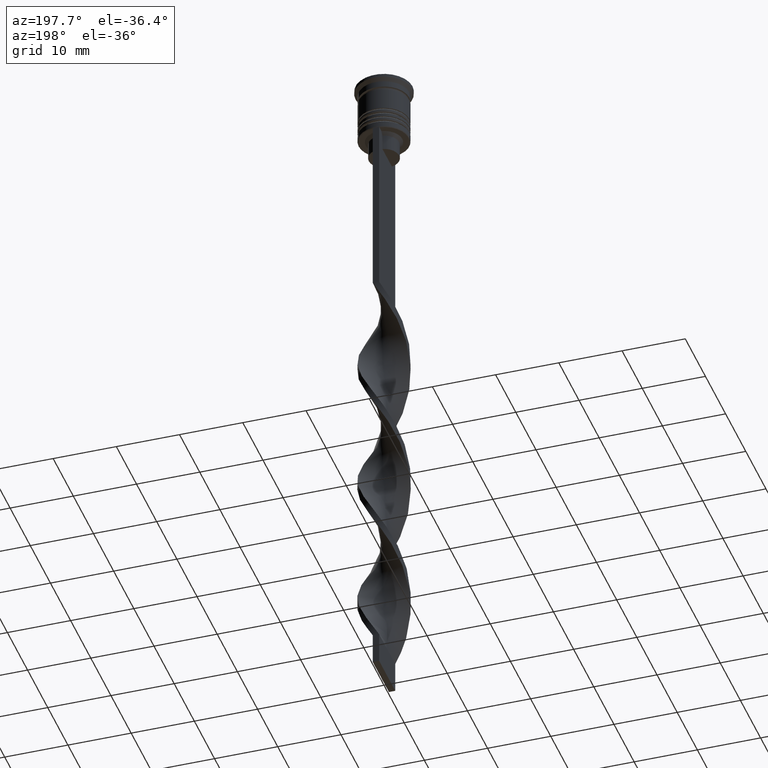
[diagram: clean part render]
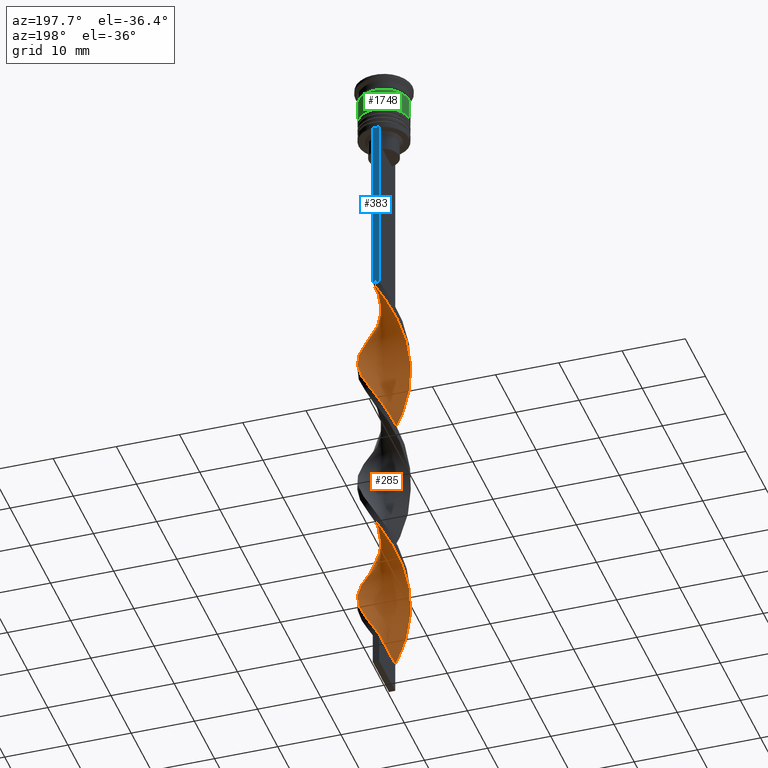
[diagram: same view with three faces highlighted in distinct colors, each labeled with its STEP entity id]
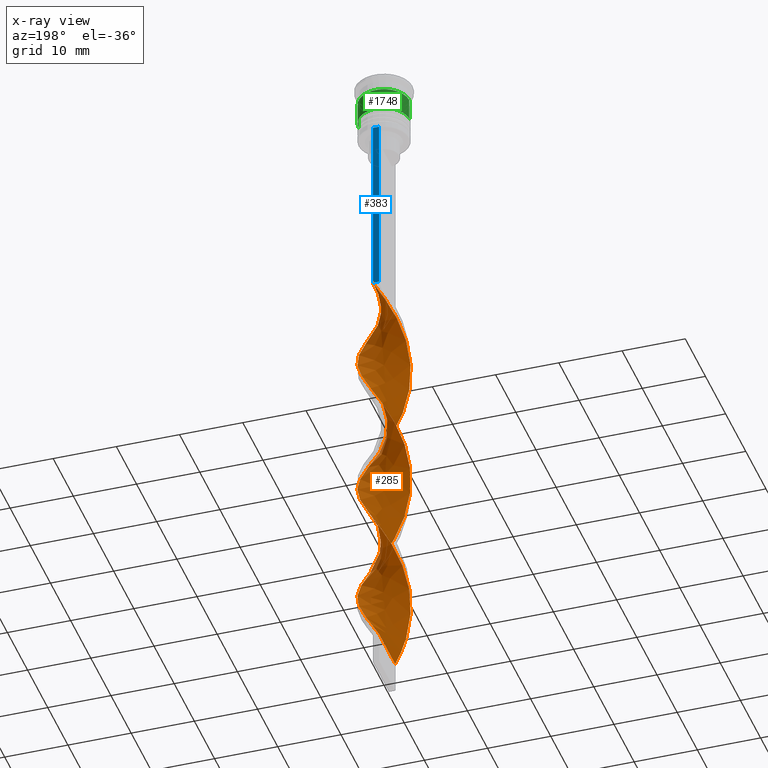
[diagram: x-ray of the same camera — body ghosted, the three highlighted faces saturated]
A machine part, auxiliary view with three faces highlighted in distinct colors.
The next image is the same camera in x-ray (body ghosted, the three faces saturated) — at least one of them is partly hidden behind the body in this view.
Their STEP definitions:

[orange] entity #285 — the highlighted face is a freeform B-spline surface patch.
#13 = CARTESIAN_POINT ( 'NONE',  ( -0.4999999999999997780, 1.333333333333333481, -104.5000000000000142 ) ) ;
#79 = CARTESIAN_POINT ( 'NONE',  ( 3.801905862948830706, -1.426565947277498525, -90.11538461538462741 ) ) ;
#80 = CARTESIAN_POINT ( 'NONE',  ( -1.874433786711570571, 3.602232165184604096, -42.73076923076923350 ) ) ;
#97 = CARTESIAN_POINT ( 'NONE',  ( 4.029378707462731413, 0.5036723384328412045, -49.50000000000000000 ) ) ;
#100 = CARTESIAN_POINT ( 'NONE',  ( 4.032828965577023972, -0.4752569063773721680, -91.80769230769230660 ) ) ;
#115 = CARTESIAN_POINT ( 'NONE',  ( 0.5000000000000000000, -4.000000000000000000, -38.50000000000000000 ) ) ;
#116 = CARTESIAN_POINT ( 'NONE',  ( -2.301620701001679148, -3.309462516590954806, -101.1153846153846132 ) ) ;
#121 = CARTESIAN_POINT ( 'NONE',  ( -4.029378707462731413, -0.5036723384328407604, -71.50000000000001421 ) ) ;
#139 = CARTESIAN_POINT ( 'NONE',  ( -2.301620701001678704, 3.309462516590955250, -63.88461538461538680 ) ) ;
#140 = CARTESIAN_POINT ( 'NONE',  ( 4.031103836519878136, 0.01420771602773408804, -92.65384615384616041 ) ) ;
#157 = CARTESIAN_POINT ( 'NONE',  ( 2.301620701001678704, -3.309462516590955250, -85.88461538461538680 ) ) ;
#160 = CARTESIAN_POINT ( 'NONE',  ( -0.9856879328890441050, -3.939289008388869640, -59.65384615384615330 ) ) ;
#180 = CARTESIAN_POINT ( 'NONE',  ( -3.575967836940204148, -1.860767053977794516, -53.73076923076923350 ) ) ;
#181 = CARTESIAN_POINT ( 'NONE',  ( -2.301620701001678704, 3.309462516590955250, -63.88461538461538680 ) ) ;
#184 = CARTESIAN_POINT ( 'NONE',  ( -3.350029810931577590, -2.294968160678091618, -54.57692307692308731 ) ) ;
#191 = CARTESIAN_POINT ( 'NONE',  ( 0.4717917484372037285, -4.003425101847986944, -62.19230769230769340 ) ) ;
#207 = CARTESIAN_POINT ( 'NONE',  ( 4.031103836519877248, -0.01420771602773772055, -72.34615384615383959 ) ) ;
#208 = CARTESIAN_POINT ( 'NONE',  ( -3.350029810931575813, 2.294968160678093394, -66.42307692307694822 ) ) ;
#211 = CARTESIAN_POINT ( 'NONE',  ( 3.575967836940203703, -1.860767053977795404, -45.26923076923076650 ) ) ;
#210 = CARTESIAN_POINT ( 'NONE',  ( 2.703462203165886368, -3.029995166449922284, -86.73076923076922640 ) ) ;
#214 = CARTESIAN_POINT ( 'NONE',  ( -0.01431206711095876771, -4.060710991611130360, -61.34615384615383959 ) ) ;
#224 = CARTESIAN_POINT ( 'NONE',  ( 3.333769449374404115, -2.318525361317905098, -68.11538461538461320 ) ) ;
#226 = CARTESIAN_POINT ( 'NONE',  ( 3.562762527220391551, 1.885927669512849070, -52.03846153846154010 ) ) ;
#251 = CARTESIAN_POINT ( 'NONE',  ( -3.910567156264554534, 0.9785011580703200096, -92.65384615384616041 ) ) ;
#257 = CARTESIAN_POINT ( 'NONE',  ( 3.562762527220391551, 1.885927669512849070, -96.03846153846154721 ) ) ;
#268 = CARTESIAN_POINT ( 'NONE',  ( 0.5000000000000000000, 4.000000000000000000, -38.50000000000000000 ) ) ;
#277 = CARTESIAN_POINT ( 'NONE',  ( 3.575967836940204148, 1.860767053977794072, -75.73076923076924061 ) ) ;
#285 = ADVANCED_FACE ( 'NONE', ( #3064 ), #1104, .T. ) ;
#324 = CARTESIAN_POINT ( 'NONE',  ( 2.682036731043690558, 3.048976478424999303, -98.57692307692310862 ) ) ;
#364 = CARTESIAN_POINT ( 'NONE',  ( 0.5000000000000000000, -4.000000000000000000, -82.50000000000000000 ) ) ;
#385 = CARTESIAN_POINT ( 'NONE',  ( 0.4717917484372064485, 4.003425101847986056, -58.80769230769231370 ) ) ;
#401 = CARTESIAN_POINT ( 'NONE',  ( -3.801905862948829373, 1.426565947277500745, -68.11538461538461320 ) ) ;
#421 = CARTESIAN_POINT ( 'NONE',  ( -2.682036731043692779, -3.048976478424997527, -76.57692307692306599 ) ) ;
#427 = CARTESIAN_POINT ( 'NONE',  ( -4.031103836519878136, 0.01420771602773549663, -50.34615384615384670 ) ) ;
#438 = CARTESIAN_POINT ( 'NONE',  ( 1.442733565863256961, -3.764109437560429150, -84.19230769230769340 ) ) ;
#441 = CARTESIAN_POINT ( 'NONE',  ( -0.9578955639853675708, 3.946139212084843972, -41.03846153846154010 ) ) ;
#444 = CARTESIAN_POINT ( 'NONE',  ( -0.4999999999999994449, 4.000000000000000000, -60.50000000000000000 ) ) ;
#451 = LINE ( 'NONE', #1015, #3233 ) ;
#462 = CARTESIAN_POINT ( 'NONE',  ( -1.899779198837470373, 3.588929866731989549, -63.03846153846153300 ) ) ;
#482 = CARTESIAN_POINT ( 'NONE',  ( 1.899779198837473482, 3.588929866731988660, -79.96153846153846700 ) ) ;
#487 = CARTESIAN_POINT ( 'NONE',  ( 1.442733565863260736, 3.764109437560427818, -80.80769230769230660 ) ) ;
#501 = CARTESIAN_POINT ( 'NONE',  ( -0.9578955639853675708, 3.946139212084843972, -85.03846153846153300 ) ) ;
#502 = CARTESIAN_POINT ( 'NONE',  ( -2.703462203165885924, 3.029995166449922728, -64.73076923076921219 ) ) ;
#507 = CARTESIAN_POINT ( 'NONE',  ( 1.416164675348468904, -3.774185688634723590, -63.88461538461538680 ) ) ;
#520 = CARTESIAN_POINT ( 'NONE',  ( 0.4717917484372037285, -4.003425101847986944, -62.19230769230769340 ) ) ;
#521 = CARTESIAN_POINT ( 'NONE',  ( -3.910567156264555422, -0.9785011580703162348, -72.34615384615383959 ) ) ;
#524 = CARTESIAN_POINT ( 'NONE',  ( 1.416164675348469792, 3.774185688634723146, -57.11538461538461320 ) ) ;
#541 = CARTESIAN_POINT ( 'NONE',  ( -1.416164675348469126, 3.774185688634723590, -85.88461538461538680 ) ) ;
#551 = CARTESIAN_POINT ( 'NONE',  ( -2.278235258877630010, 3.325604321804802588, -87.57692307692308020 ) ) ;
#560 = CARTESIAN_POINT ( 'NONE',  ( 2.278235258877629565, -3.325604321804802588, -65.57692307692308020 ) ) ;
#566 = CARTESIAN_POINT ( 'NONE',  ( -3.333769449374405003, 2.318525361317902878, -46.11538461538462741 ) ) ;
#578 = CARTESIAN_POINT ( 'NONE',  ( -0.5000000000000002220, -1.333333333333333481, -104.5000000000000142 ) ) ;
#608 =( BOUNDED_CURVE ( )  B_SPLINE_CURVE ( 2, ( #974, #2361, #744, #441, #2397, #953, #3490, #2108, #3471, #2093, #2710, #2932, #1840, #2125, #427, #1306, #1560, #3199, #180, #3508, #2678, #1008, #1330, #1575, #2695, #160, #2071, #2412, #520, #1069, #2732, #3267, #560, #2518, #2434, #224, #1972, #1365, #1115, #758, #207, #3583, #1387, #3547, #277, #1408, #1635, #3628, #1891, #482, #2766, #3076, #781, #840, #1697, #501, #541, #1348, #2458, #1048, #2802, #2168, #1934, #2748, #3329, #1617, #3000, #2473, #3306, #3564, #2183, #2226, #1675, #3042, #1130, #1090, #3342, #2207, #1918 ),
 .UNSPECIFIED., .F., .T. ) 
 B_SPLINE_CURVE_WITH_KNOTS ( ( 3, 2, 2, 2, 2, 2, 2, 2, 2, 2, 2, 2, 2, 2, 2, 2, 2, 2, 2, 2, 2, 2, 2, 2, 2, 2, 2, 2, 2, 2, 2, 2, 2, 2, 2, 2, 2, 2, 2, 3 ),
 ( 0.000000000000000000, 0.01923076923076923184, 0.03846153846153846367, 0.05769230769230768857, 0.07692307692307692735, 0.09615384615384615918, 0.1153846153846153771, 0.1346153846153846090, 0.1538461538461538547, 0.1730769230769230449, 0.1923076923076923184, 0.2115384615384615363, 0.2307692307692307543, 0.2500000000000000000, 0.2692307692307692180, 0.2884615384615384359, 0.3076923076923077094, 0.3269230769230769273, 0.3461538461538460898, 0.3653846153846153633, 0.3846153846153846367, 0.4038461538461539102, 0.4230769230769230727, 0.4423076923076922906, 0.4615384615384615086, 0.4807692307692307820, 0.5000000000000000000, 0.5192307692307692735, 0.5384615384615384359, 0.5576923076923077094, 0.5769230769230768718, 0.5961538461538461453, 0.6153846153846154188, 0.6346153846153845812, 0.6538461538461538547, 0.6730769230769230171, 0.6923076923076921796, 0.7115384615384615641, 0.7307692307692307265, 0.7500000000000000000 ),
 .UNSPECIFIED. ) 
 CURVE ( )  GEOMETRIC_REPRESENTATION_ITEM ( )  RATIONAL_B_SPLINE_CURVE ( ( 1.000000000000000000, 0.9927088740980539727, 1.000000000000000000, 0.9927088740980539727, 1.000000000000000000, 0.9927088740980539727, 1.000000000000000000, 0.9927088740980539727, 1.000000000000000000, 0.9927088740980539727, 1.000000000000000000, 0.9927088740980539727, 1.000000000000000000, 0.9927088740980539727, 1.000000000000000000, 0.9927088740980539727, 1.000000000000000000, 0.9927088740980539727, 1.000000000000000000, 0.9927088740980539727, 1.000000000000000000, 0.9927088740980539727, 1.000000000000000000, 0.9927088740980539727, 1.000000000000000000, 0.9927088740980539727, 1.000000000000000000, 0.9927088740980539727, 1.000000000000000000, 0.9927088740980539727, 1.000000000000000000, 0.9927088740980539727, 1.000000000000000000, 0.9927088740980539727, 1.000000000000000000, 0.9927088740980539727, 1.000000000000000000, 0.9927088740980539727, 1.000000000000000000, 0.9927088740980539727, 1.000000000000000000, 0.9927088740980539727, 1.000000000000000000, 0.9927088740980539727, 1.000000000000000000, 0.9927088740980539727, 1.000000000000000000, 0.9927088740980539727, 1.000000000000000000, 0.9927088740980539727, 1.000000000000000000, 0.9927088740980539727, 1.000000000000000000, 0.9927088740980539727, 1.000000000000000000, 0.9927088740980539727, 1.000000000000000000, 0.9927088740980539727, 1.000000000000000000, 0.9927088740980539727, 1.000000000000000000, 0.9927088740980539727, 1.000000000000000000, 0.9927088740980539727, 1.000000000000000000, 0.9927088740980539727, 1.000000000000000000, 0.9927088740980539727, 1.000000000000000000, 0.9927088740980539727, 1.000000000000000000, 0.9927088740980539727, 1.000000000000000000, 0.9927088740980539727, 1.000000000000000000, 0.9927088740980539727, 1.000000000000000000, 0.9927088740980539727, 1.000000000000000000 ) ) 
 REPRESENTATION_ITEM ( '' )  );
#665 = CARTESIAN_POINT ( 'NONE',  ( 2.703462203165886368, -3.029995166449922284, -42.73076923076923350 ) ) ;
#682 = CARTESIAN_POINT ( 'NONE',  ( 3.350029810931576701, -2.294968160678092506, -44.42307692307692690 ) ) ;
#685 = CARTESIAN_POINT ( 'NONE',  ( 2.301620701001678704, -3.309462516590955250, -41.88461538461537970 ) ) ;
#695 = CARTESIAN_POINT ( 'NONE',  ( -3.791755605066378987, -1.453329977707795484, -73.19230769230769340 ) ) ;
#715 = CARTESIAN_POINT ( 'NONE',  ( -0.4717917484372087800, -4.003425101847986056, -80.80769230769230660 ) ) ;
#718 = CARTESIAN_POINT ( 'NONE',  ( 4.029378707462731413, 0.5036723384328412045, -93.49999999999998579 ) ) ;
#722 = CARTESIAN_POINT ( 'NONE',  ( 1.442733565863256961, -3.764109437560429150, -40.19230769230769340 ) ) ;
#725 = CARTESIAN_POINT ( 'NONE',  ( 3.910567156264554534, 0.9785011580703186773, -94.34615384615385381 ) ) ;
#727 = CARTESIAN_POINT ( 'NONE',  ( 3.575967836940203703, -1.860767053977795404, -89.26923076923077360 ) ) ;
#739 = CARTESIAN_POINT ( 'NONE',  ( -3.007903090209048891, -2.683750919871450868, -75.73076923076924061 ) ) ;
#744 = CARTESIAN_POINT ( 'NONE',  ( -0.4717917484372050052, 4.003425101847986944, -40.19230769230769340 ) ) ;
#749 = CARTESIAN_POINT ( 'NONE',  ( 1.899779198837473482, 3.588929866731988216, -79.96153846153846700 ) ) ;
#752 = CARTESIAN_POINT ( 'NONE',  ( -3.575967836940204148, -1.860767053977794516, -97.73076923076922640 ) ) ;
#755 = CARTESIAN_POINT ( 'NONE',  ( 1.416164675348469792, 3.774185688634723146, -101.1153846153846132 ) ) ;
#758 = CARTESIAN_POINT ( 'NONE',  ( 4.029378707462731413, -0.5036723384328422037, -71.50000000000001421 ) ) ;
#759 = CARTESIAN_POINT ( 'NONE',  ( 1.899779198837471705, -3.588929866731989105, -41.03846153846154010 ) ) ;
#760 = CARTESIAN_POINT ( 'NONE',  ( -3.801905862948829373, 1.426565947277500745, -68.11538461538462741 ) ) ;
#768 = CARTESIAN_POINT ( 'NONE',  ( 0.5000000000000000000, 4.000000000000000000, -38.50000000000000000 ) ) ;
#781 = CARTESIAN_POINT ( 'NONE',  ( 0.5000000000000000000, 4.000000000000000000, -82.50000000000000000 ) ) ;
#784 = CARTESIAN_POINT ( 'NONE',  ( 3.917367414262926673, -0.9509114268274357906, -46.96153846153845990 ) ) ;
#797 = CARTESIAN_POINT ( 'NONE',  ( 1.874433786711570793, 3.602232165184603652, -100.2692307692307878 ) ) ;
#805 = CARTESIAN_POINT ( 'NONE',  ( -3.562762527220391551, -1.885927669512849514, -74.03846153846153300 ) ) ;
#807 = CARTESIAN_POINT ( 'NONE',  ( 3.007903090209048003, 2.683750919871450868, -53.73076923076923350 ) ) ;
#810 = CARTESIAN_POINT ( 'NONE',  ( 3.562762527220391107, -1.885927669512850846, -68.96153846153846700 ) ) ;
#815 = CARTESIAN_POINT ( 'NONE',  ( -3.007903090209047559, 2.683750919871451757, -89.26923076923077360 ) ) ;
#819 = CARTESIAN_POINT ( 'NONE',  ( 2.278235258877631342, 3.325604321804801256, -99.42307692307691980 ) ) ;
#825 = CARTESIAN_POINT ( 'NONE',  ( -0.01431206711095605461, 4.060710991611130360, -59.65384615384615330 ) ) ;
#840 = CARTESIAN_POINT ( 'NONE',  ( 0.01431206711095789862, 4.060710991611130360, -83.34615384615386802 ) ) ;
#848 = CARTESIAN_POINT ( 'NONE',  ( -2.682036731043689670, 3.048976478425000636, -44.42307692307691980 ) ) ;
#873 = CARTESIAN_POINT ( 'NONE',  ( 3.007903090209048003, 2.683750919871450868, -97.73076923076922640 ) ) ;
#879 = CARTESIAN_POINT ( 'NONE',  ( -0.5000000000000005551, -4.000000000000000000, -104.5000000000000142 ) ) ;
#882 = CARTESIAN_POINT ( 'NONE',  ( 0.4717917484372064485, 4.003425101847986056, -102.8076923076923208 ) ) ;
#919 = CARTESIAN_POINT ( 'NONE',  ( -0.5000000000000005551, -4.000000000000000000, -104.5000000000000142 ) ) ;
#931 = EDGE_CURVE ( 'NONE', #1006, #3159, #3027, .T. ) ;
#947 = CARTESIAN_POINT ( 'NONE',  ( 3.575967836940203703, -1.860767053977795404, -45.26923076923076650 ) ) ;
#948 = CARTESIAN_POINT ( 'NONE',  ( 0.01431206711095789688, 4.060710991611130360, -39.34615384615384670 ) ) ;
#953 = CARTESIAN_POINT ( 'NONE',  ( -1.874433786711570349, 3.602232165184604096, -42.73076923076923350 ) ) ;
#971 = CARTESIAN_POINT ( 'NONE',  ( 3.562762527220391551, 1.885927669512849070, -52.03846153846154010 ) ) ;
#974 = CARTESIAN_POINT ( 'NONE',  ( 0.5000000000000000000, 4.000000000000000000, -38.50000000000000000 ) ) ;
#985 = CARTESIAN_POINT ( 'NONE',  ( 0.5000000000000000000, -4.000000000000000000, -38.50000000000000000 ) ) ;
#1004 = CARTESIAN_POINT ( 'NONE',  ( -1.416164675348472235, -3.774185688634722702, -79.11538461538461320 ) ) ;
#1006 = VERTEX_POINT ( 'NONE', #879 ) ;
#1008 = CARTESIAN_POINT ( 'NONE',  ( -2.703462203165886368, -3.029995166449921840, -56.26923076923076650 ) ) ;
#1009 = CARTESIAN_POINT ( 'NONE',  ( 0.5000000000000000000, -4.000000000000000000, -38.50000000000000000 ) ) ;
#1015 = CARTESIAN_POINT ( 'NONE',  ( 0.5000000000000000000, -4.000000000000000000, -38.50000000000000000 ) ) ;
#1021 = CARTESIAN_POINT ( 'NONE',  ( 1.442733565863256961, -3.764109437560429150, -40.19230769230769340 ) ) ;
#1028 = CARTESIAN_POINT ( 'NONE',  ( -0.4999999999999994449, 4.000000000000000000, -104.5000000000000142 ) ) ;
#1036 = CARTESIAN_POINT ( 'NONE',  ( -3.917367414262927561, -0.9509114268274344584, -96.03846153846154721 ) ) ;
#1048 = CARTESIAN_POINT ( 'NONE',  ( -2.682036731043690114, 3.048976478425000636, -88.42307692307691980 ) ) ;
#1049 = CARTESIAN_POINT ( 'NONE',  ( -3.007903090209048891, -2.683750919871450868, -75.73076923076924061 ) ) ;
#1058 = CARTESIAN_POINT ( 'NONE',  ( -1.416164675348469126, 3.774185688634723590, -85.88461538461538680 ) ) ;
#1069 = CARTESIAN_POINT ( 'NONE',  ( 0.9578955639853662385, -3.946139212084843972, -63.03846153846154010 ) ) ;
#1073 = CARTESIAN_POINT ( 'NONE',  ( 2.278235258877629565, -3.325604321804802588, -65.57692307692308020 ) ) ;
#1090 = CARTESIAN_POINT ( 'NONE',  ( -1.899779198837473038, -3.588929866731988660, -101.9615384615384670 ) ) ;
#1091 = CARTESIAN_POINT ( 'NONE',  ( -3.575967836940203703, 1.860767053977795404, -67.26923076923077360 ) ) ;
#1094 = CARTESIAN_POINT ( 'NONE',  ( 3.333769449374405447, 2.318525361317902433, -52.88461538461537970 ) ) ;
#1104 =( BOUNDED_SURFACE ( )  B_SPLINE_SURFACE ( 1, 2, ( 
 ( #268, #948, #2247, #2276, #1734, #80, #3348, #848, #3078, #566, #1595, #1564, #3510, #1860, #3549, #1309, #2414, #2150, #2712, #184, #3476, #2419, #2230, #3028, #1371, #3252, #1879, #214, #191, #3615, #507, #3534, #1073, #2483, #2213, #3313, #810, #1940, #1410, #2635, #1210, #1899, #1659, #3332, #3570, #1959, #2443, #2175, #3314, #749, #487, #2985, #3008, #2191, #1393, #2755, #1058, #2796, #551, #1357, #815, #1622, #3595, #1943, #251, #2510, #3538, #3335, #1036, #3257, #752, #1604, #2720, #2651, #116, #1281, #3256, #1289, #2679 ),
 ( #1009, #2126, #722, #759, #685, #2563, #3309, #1593, #211, #2438, #784, #3565, #1893, #3003, #2186, #2750, #226, #1094, #807, #2502, #1936, #3045, #524, #1655, #2227, #825, #444, #2184, #1349, #462, #181, #502, #3584, #208, #1091, #760, #2435, #2208, #3307, #2413, #521, #3528, #805, #3610, #1049, #3645, #2476, #3587, #2341, #3449, #1467, #3391, #2021, #2323, #1455, #1473, #3269, #210, #3288, #1546, #727, #1888, #3265, #100, #140, #718, #725, #2398, #1164, #2320, #873, #324, #1193, #2302, #3146, #3107, #2952, #1561, #1028 ) ),
 .UNSPECIFIED., .F., .F., .F. ) 
 B_SPLINE_SURFACE_WITH_KNOTS ( ( 2, 2 ),
 ( 3, 2, 2, 2, 2, 2, 2, 2, 2, 2, 2, 2, 2, 2, 2, 2, 2, 2, 2, 2, 2, 2, 2, 2, 2, 2, 2, 2, 2, 2, 2, 2, 2, 2, 2, 2, 2, 2, 2, 3 ),
 ( 0.000000000000000000, 1.000000000000000000 ),
 ( 0.000000000000000000, 0.01923076923076923184, 0.03846153846153846367, 0.05769230769230769551, 0.07692307692307692735, 0.09615384615384615918, 0.1153846153846153910, 0.1346153846153846090, 0.1538461538461538547, 0.1730769230769230727, 0.1923076923076923184, 0.2115384615384615363, 0.2307692307692307820, 0.2500000000000000000, 0.2692307692307692180, 0.2884615384615384359, 0.3076923076923077094, 0.3269230769230769273, 0.3461538461538461453, 0.3653846153846153633, 0.3846153846153846367, 0.4038461538461538547, 0.4230769230769230727, 0.4423076923076922906, 0.4615384615384615641, 0.4807692307692307820, 0.5000000000000000000, 0.5192307692307692735, 0.5384615384615384359, 0.5576923076923077094, 0.5769230769230768718, 0.5961538461538461453, 0.6153846153846154188, 0.6346153846153845812, 0.6538461538461538547, 0.6730769230769231282, 0.6923076923076922906, 0.7115384615384615641, 0.7307692307692307265, 0.7500000000000000000 ),
 .UNSPECIFIED. ) 
 GEOMETRIC_REPRESENTATION_ITEM ( )  RATIONAL_B_SPLINE_SURFACE ( (
 ( 1.000000000000000000, 0.9927088740980539727, 1.000000000000000000, 0.9927088740980539727, 1.000000000000000000, 0.9927088740980539727, 1.000000000000000000, 0.9927088740980539727, 1.000000000000000000, 0.9927088740980539727, 1.000000000000000000, 0.9927088740980539727, 1.000000000000000000, 0.9927088740980539727, 1.000000000000000000, 0.9927088740980539727, 1.000000000000000000, 0.9927088740980539727, 1.000000000000000000, 0.9927088740980539727, 1.000000000000000000, 0.9927088740980539727, 1.000000000000000000, 0.9927088740980539727, 1.000000000000000000, 0.9927088740980539727, 1.000000000000000000, 0.9927088740980539727, 1.000000000000000000, 0.9927088740980539727, 1.000000000000000000, 0.9927088740980539727, 1.000000000000000000, 0.9927088740980539727, 1.000000000000000000, 0.9927088740980539727, 1.000000000000000000, 0.9927088740980539727, 1.000000000000000000, 0.9927088740980539727, 1.000000000000000000, 0.9927088740980539727, 1.000000000000000000, 0.9927088740980539727, 1.000000000000000000, 0.9927088740980539727, 1.000000000000000000, 0.9927088740980539727, 1.000000000000000000, 0.9927088740980539727, 1.000000000000000000, 0.9927088740980539727, 1.000000000000000000, 0.9927088740980539727, 1.000000000000000000, 0.9927088740980539727, 1.000000000000000000, 0.9927088740980539727, 1.000000000000000000, 0.9927088740980539727, 1.000000000000000000, 0.9927088740980539727, 1.000000000000000000, 0.9927088740980539727, 1.000000000000000000, 0.9927088740980539727, 1.000000000000000000, 0.9927088740980539727, 1.000000000000000000, 0.9927088740980539727, 1.000000000000000000, 0.9927088740980539727, 1.000000000000000000, 0.9927088740980539727, 1.000000000000000000, 0.9927088740980539727, 1.000000000000000000, 0.9927088740980539727, 1.000000000000000000),
 ( 1.000000000000000000, 0.9927088740980539727, 1.000000000000000000, 0.9927088740980539727, 1.000000000000000000, 0.9927088740980539727, 1.000000000000000000, 0.9927088740980539727, 1.000000000000000000, 0.9927088740980539727, 1.000000000000000000, 0.9927088740980539727, 1.000000000000000000, 0.9927088740980539727, 1.000000000000000000, 0.9927088740980539727, 1.000000000000000000, 0.9927088740980539727, 1.000000000000000000, 0.9927088740980539727, 1.000000000000000000, 0.9927088740980539727, 1.000000000000000000, 0.9927088740980539727, 1.000000000000000000, 0.9927088740980539727, 1.000000000000000000, 0.9927088740980539727, 1.000000000000000000, 0.9927088740980539727, 1.000000000000000000, 0.9927088740980539727, 1.000000000000000000, 0.9927088740980539727, 1.000000000000000000, 0.9927088740980539727, 1.000000000000000000, 0.9927088740980539727, 1.000000000000000000, 0.9927088740980539727, 1.000000000000000000, 0.9927088740980539727, 1.000000000000000000, 0.9927088740980539727, 1.000000000000000000, 0.9927088740980539727, 1.000000000000000000, 0.9927088740980539727, 1.000000000000000000, 0.9927088740980539727, 1.000000000000000000, 0.9927088740980539727, 1.000000000000000000, 0.9927088740980539727, 1.000000000000000000, 0.9927088740980539727, 1.000000000000000000, 0.9927088740980539727, 1.000000000000000000, 0.9927088740980539727, 1.000000000000000000, 0.9927088740980539727, 1.000000000000000000, 0.9927088740980539727, 1.000000000000000000, 0.9927088740980539727, 1.000000000000000000, 0.9927088740980539727, 1.000000000000000000, 0.9927088740980539727, 1.000000000000000000, 0.9927088740980539727, 1.000000000000000000, 0.9927088740980539727, 1.000000000000000000, 0.9927088740980539727, 1.000000000000000000, 0.9927088740980539727, 1.000000000000000000) ) ) 
 REPRESENTATION_ITEM ( '' )  SURFACE ( )  );
#1109 = CARTESIAN_POINT ( 'NONE',  ( 2.682036731043691002, 3.048976478424999303, -98.57692307692310862 ) ) ;
#1115 = CARTESIAN_POINT ( 'NONE',  ( 3.910567156264554534, -0.9785011580703212308, -70.65384615384614619 ) ) ;
#1130 = CARTESIAN_POINT ( 'NONE',  ( -2.301620701001679148, -3.309462516590954806, -101.1153846153846132 ) ) ;
#1164 = CARTESIAN_POINT ( 'NONE',  ( 3.562762527220391551, 1.885927669512849070, -96.03846153846154721 ) ) ;
#1193 = CARTESIAN_POINT ( 'NONE',  ( 2.278235258877631342, 3.325604321804801256, -99.42307692307691980 ) ) ;
#1210 = CARTESIAN_POINT ( 'NONE',  ( 4.031103836519877248, -0.01420771602773772055, -72.34615384615383959 ) ) ;
#1215 =( BOUNDED_CURVE ( )  B_SPLINE_CURVE ( 2, ( #985, #1230, #1021, #1834, #2338, #665, #3242, #682, #947, #2692, #3209, #2143, #2636, #97, #1537, #2067, #971, #3447, #1805, #2375, #3505, #2928, #2673, #2911, #385, #1522, #1266, #2105, #1247, #2394, #139, #2355, #1823, #3467, #2120, #401, #3195, #2618, #2088, #121, #3486, #695, #2943, #1869, #739, #421, #1285, #1557, #1004, #3223, #715, #1855, #364, #2963, #438, #1572, #157, #1303, #2407, #3521, #1504, #79, #3263, #2761, #2222, #2469, #1949, #1913, #257, #3017, #1345, #1109, #819, #797, #755, #2978, #882, #2164, #2451 ),
 .UNSPECIFIED., .F., .T. ) 
 B_SPLINE_CURVE_WITH_KNOTS ( ( 3, 2, 2, 2, 2, 2, 2, 2, 2, 2, 2, 2, 2, 2, 2, 2, 2, 2, 2, 2, 2, 2, 2, 2, 2, 2, 2, 2, 2, 2, 2, 2, 2, 2, 2, 2, 2, 2, 2, 3 ),
 ( 0.000000000000000000, 0.01923076923076923184, 0.03846153846153846367, 0.05769230769230768857, 0.07692307692307692735, 0.09615384615384615918, 0.1153846153846153771, 0.1346153846153846090, 0.1538461538461538547, 0.1730769230769230449, 0.1923076923076923184, 0.2115384615384615363, 0.2307692307692307543, 0.2500000000000000000, 0.2692307692307692180, 0.2884615384615384359, 0.3076923076923077094, 0.3269230769230769273, 0.3461538461538460898, 0.3653846153846153633, 0.3846153846153846367, 0.4038461538461539102, 0.4230769230769230727, 0.4423076923076922906, 0.4615384615384615086, 0.4807692307692307820, 0.5000000000000000000, 0.5192307692307692735, 0.5384615384615384359, 0.5576923076923077094, 0.5769230769230768718, 0.5961538461538461453, 0.6153846153846154188, 0.6346153846153845812, 0.6538461538461538547, 0.6730769230769230171, 0.6923076923076921796, 0.7115384615384615641, 0.7307692307692307265, 0.7500000000000000000 ),
 .UNSPECIFIED. ) 
 CURVE ( )  GEOMETRIC_REPRESENTATION_ITEM ( )  RATIONAL_B_SPLINE_CURVE ( ( 1.000000000000000000, 0.9927088740980539727, 1.000000000000000000, 0.9927088740980539727, 1.000000000000000000, 0.9927088740980539727, 1.000000000000000000, 0.9927088740980539727, 1.000000000000000000, 0.9927088740980539727, 1.000000000000000000, 0.9927088740980539727, 1.000000000000000000, 0.9927088740980539727, 1.000000000000000000, 0.9927088740980539727, 1.000000000000000000, 0.9927088740980539727, 1.000000000000000000, 0.9927088740980539727, 1.000000000000000000, 0.9927088740980539727, 1.000000000000000000, 0.9927088740980539727, 1.000000000000000000, 0.9927088740980539727, 1.000000000000000000, 0.9927088740980539727, 1.000000000000000000, 0.9927088740980539727, 1.000000000000000000, 0.9927088740980539727, 1.000000000000000000, 0.9927088740980539727, 1.000000000000000000, 0.9927088740980539727, 1.000000000000000000, 0.9927088740980539727, 1.000000000000000000, 0.9927088740980539727, 1.000000000000000000, 0.9927088740980539727, 1.000000000000000000, 0.9927088740980539727, 1.000000000000000000, 0.9927088740980539727, 1.000000000000000000, 0.9927088740980539727, 1.000000000000000000, 0.9927088740980539727, 1.000000000000000000, 0.9927088740980539727, 1.000000000000000000, 0.9927088740980539727, 1.000000000000000000, 0.9927088740980539727, 1.000000000000000000, 0.9927088740980539727, 1.000000000000000000, 0.9927088740980539727, 1.000000000000000000, 0.9927088740980539727, 1.000000000000000000, 0.9927088740980539727, 1.000000000000000000, 0.9927088740980539727, 1.000000000000000000, 0.9927088740980539727, 1.000000000000000000, 0.9927088740980539727, 1.000000000000000000, 0.9927088740980539727, 1.000000000000000000, 0.9927088740980539727, 1.000000000000000000, 0.9927088740980539727, 1.000000000000000000, 0.9927088740980539727, 1.000000000000000000 ) ) 
 REPRESENTATION_ITEM ( '' )  );
#1230 = CARTESIAN_POINT ( 'NONE',  ( 0.9856879328890421066, -3.939289008388869640, -39.34615384615384670 ) ) ;
#1247 = CARTESIAN_POINT ( 'NONE',  ( -1.442733565863255851, 3.764109437560429594, -62.19230769230769340 ) ) ;
#1266 = CARTESIAN_POINT ( 'NONE',  ( -0.4999999999999994449, 4.000000000000000000, -60.50000000000000000 ) ) ;
#1281 = CARTESIAN_POINT ( 'NONE',  ( -1.899779198837473038, -3.588929866731988216, -101.9615384615384670 ) ) ;
#1285 = CARTESIAN_POINT ( 'NONE',  ( -2.278235258877631786, -3.325604321804800811, -77.42307692307693401 ) ) ;
#1289 = CARTESIAN_POINT ( 'NONE',  ( -0.9856879328890439940, -3.939289008388870084, -103.6538461538461604 ) ) ;
#1303 = CARTESIAN_POINT ( 'NONE',  ( 2.703462203165886368, -3.029995166449922284, -86.73076923076922640 ) ) ;
#1306 = CARTESIAN_POINT ( 'NONE',  ( -4.032828965577023084, -0.4752569063773717239, -51.19230769230768630 ) ) ;
#1309 = CARTESIAN_POINT ( 'NONE',  ( -4.032828965577023084, -0.4752569063773717239, -51.19230769230768630 ) ) ;
#1330 = CARTESIAN_POINT ( 'NONE',  ( -2.301620701001679148, -3.309462516590954806, -57.11538461538461320 ) ) ;
#1344 = ORIENTED_EDGE ( 'NONE', *, *, #3187, .T. ) ;
#1345 = CARTESIAN_POINT ( 'NONE',  ( 3.007903090209048003, 2.683750919871450868, -97.73076923076922640 ) ) ;
#1348 = CARTESIAN_POINT ( 'NONE',  ( -1.874433786711570349, 3.602232165184604096, -86.73076923076922640 ) ) ;
#1349 = CARTESIAN_POINT ( 'NONE',  ( -1.442733565863255851, 3.764109437560429594, -62.19230769230769340 ) ) ;
#1357 = CARTESIAN_POINT ( 'NONE',  ( -2.682036731043689670, 3.048976478425000636, -88.42307692307693401 ) ) ;
#1365 = CARTESIAN_POINT ( 'NONE',  ( 3.791755605066377655, -1.453329977707796816, -69.80769230769230660 ) ) ;
#1371 = CARTESIAN_POINT ( 'NONE',  ( -1.442733565863258516, -3.764109437560428262, -58.80769230769231370 ) ) ;
#1387 = CARTESIAN_POINT ( 'NONE',  ( 3.917367414262927561, 0.9509114268274349024, -74.03846153846153300 ) ) ;
#1393 = CARTESIAN_POINT ( 'NONE',  ( -0.4717917484372050052, 4.003425101847986944, -84.19230769230769340 ) ) ;
#1408 = CARTESIAN_POINT ( 'NONE',  ( 3.350029810931578478, 2.294968160678088509, -76.57692307692306599 ) ) ;
#1410 = CARTESIAN_POINT ( 'NONE',  ( 3.910567156264554534, -0.9785011580703212308, -70.65384615384614619 ) ) ;
#1455 = CARTESIAN_POINT ( 'NONE',  ( 1.442733565863256961, -3.764109437560429150, -84.19230769230769340 ) ) ;
#1467 = CARTESIAN_POINT ( 'NONE',  ( -0.4717917484372087800, -4.003425101847986056, -80.80769230769230660 ) ) ;
#1473 = CARTESIAN_POINT ( 'NONE',  ( 1.899779198837471705, -3.588929866731989105, -85.03846153846153300 ) ) ;
#1504 = CARTESIAN_POINT ( 'NONE',  ( 3.575967836940203703, -1.860767053977795404, -89.26923076923077360 ) ) ;
#1522 = CARTESIAN_POINT ( 'NONE',  ( -0.01431206711095605461, 4.060710991611130360, -59.65384615384615330 ) ) ;
#1537 = CARTESIAN_POINT ( 'NONE',  ( 3.910567156264554534, 0.9785011580703186773, -50.34615384615384670 ) ) ;
#1546 = CARTESIAN_POINT ( 'NONE',  ( 3.350029810931576701, -2.294968160678092506, -88.42307692307693401 ) ) ;
#1557 = CARTESIAN_POINT ( 'NONE',  ( -1.874433786711571237, -3.602232165184603652, -78.26923076923077360 ) ) ;
#1560 = CARTESIAN_POINT ( 'NONE',  ( -3.917367414262927561, -0.9509114268274344584, -52.03846153846154010 ) ) ;
#1561 = CARTESIAN_POINT ( 'NONE',  ( -0.01431206711095605461, 4.060710991611130360, -103.6538461538461604 ) ) ;
#1564 = CARTESIAN_POINT ( 'NONE',  ( -3.791755605066377655, 1.453329977707797260, -47.80769230769230660 ) ) ;
#1572 = CARTESIAN_POINT ( 'NONE',  ( 1.899779198837471705, -3.588929866731989549, -85.03846153846153300 ) ) ;
#1575 = CARTESIAN_POINT ( 'NONE',  ( -1.899779198837473038, -3.588929866731988660, -57.96153846153846700 ) ) ;
#1593 = CARTESIAN_POINT ( 'NONE',  ( 3.350029810931576701, -2.294968160678092506, -44.42307692307691980 ) ) ;
#1595 = CARTESIAN_POINT ( 'NONE',  ( -3.562762527220391107, 1.885927669512850402, -46.96153846153845990 ) ) ;
#1604 = CARTESIAN_POINT ( 'NONE',  ( -3.350029810931577590, -2.294968160678091618, -98.57692307692310862 ) ) ;
#1617 = CARTESIAN_POINT ( 'NONE',  ( -4.029378707462731413, 0.5036723384328416486, -93.50000000000000000 ) ) ;
#1622 = CARTESIAN_POINT ( 'NONE',  ( -3.333769449374405003, 2.318525361317902878, -90.11538461538462741 ) ) ;
#1635 = CARTESIAN_POINT ( 'NONE',  ( 3.026746007048732423, 2.662481663564005174, -77.42307692307693401 ) ) ;
#1655 = CARTESIAN_POINT ( 'NONE',  ( 0.9578955639853687920, 3.946139212084844416, -57.96153846153846700 ) ) ;
#1659 = CARTESIAN_POINT ( 'NONE',  ( 3.917367414262927561, 0.9509114268274349024, -74.03846153846153300 ) ) ;
#1675 = CARTESIAN_POINT ( 'NONE',  ( -3.026746007048731979, -2.662481663564005618, -99.42307692307691980 ) ) ;
#1697 = CARTESIAN_POINT ( 'NONE',  ( -0.4717917484372050052, 4.003425101847986944, -84.19230769230769340 ) ) ;
#1734 = CARTESIAN_POINT ( 'NONE',  ( -1.416164675348469126, 3.774185688634723590, -41.88461538461537970 ) ) ;
#1805 = CARTESIAN_POINT ( 'NONE',  ( 3.007903090209048003, 2.683750919871450868, -53.73076923076923350 ) ) ;
#1823 = CARTESIAN_POINT ( 'NONE',  ( -3.026746007048730647, 2.662481663564007839, -65.57692307692308020 ) ) ;
#1834 = CARTESIAN_POINT ( 'NONE',  ( 1.899779198837471705, -3.588929866731989549, -41.03846153846154010 ) ) ;
#1840 = CARTESIAN_POINT ( 'NONE',  ( -3.910567156264554534, 0.9785011580703200096, -48.65384615384615330 ) ) ;
#1855 = CARTESIAN_POINT ( 'NONE',  ( 0.01431206711095556715, -4.060710991611130360, -81.65384615384616041 ) ) ;
#1860 = CARTESIAN_POINT ( 'NONE',  ( -4.029378707462731413, 0.5036723384328416486, -49.50000000000000000 ) ) ;
#1869 = CARTESIAN_POINT ( 'NONE',  ( -3.333769449374406335, -2.318525361317901101, -74.88461538461538680 ) ) ;
#1879 = CARTESIAN_POINT ( 'NONE',  ( -0.5000000000000005551, -4.000000000000000000, -60.50000000000000000 ) ) ;
#1888 = CARTESIAN_POINT ( 'NONE',  ( 3.801905862948830706, -1.426565947277498525, -90.11538461538462741 ) ) ;
#1891 = CARTESIAN_POINT ( 'NONE',  ( 2.301620701001681368, 3.309462516590953474, -79.11538461538461320 ) ) ;
#1893 = CARTESIAN_POINT ( 'NONE',  ( 4.031103836519878136, 0.01420771602773408804, -48.65384615384615330 ) ) ;
#1899 = CARTESIAN_POINT ( 'NONE',  ( 4.032828965577023972, 0.4752569063773701696, -73.19230769230770761 ) ) ;
#1913 = CARTESIAN_POINT ( 'NONE',  ( 3.791755605066377655, 1.453329977707796816, -95.19230769230769340 ) ) ;
#1918 = CARTESIAN_POINT ( 'NONE',  ( -0.5000000000000005551, -4.000000000000000000, -104.5000000000000142 ) ) ;
#1934 = CARTESIAN_POINT ( 'NONE',  ( -3.562762527220391107, 1.885927669512850402, -90.96153846153845279 ) ) ;
#1936 = CARTESIAN_POINT ( 'NONE',  ( 2.278235258877631342, 3.325604321804801256, -55.42307692307691980 ) ) ;
#1940 = CARTESIAN_POINT ( 'NONE',  ( 3.791755605066377655, -1.453329977707796816, -69.80769230769230660 ) ) ;
#1943 = CARTESIAN_POINT ( 'NONE',  ( -3.791755605066377655, 1.453329977707797260, -91.80769230769230660 ) ) ;
#1946 = EDGE_LOOP ( 'NONE', ( #3448, #1344, #3139, #2340 ) ) ;
#1949 = CARTESIAN_POINT ( 'NONE',  ( 3.910567156264554534, 0.9785011580703186773, -94.34615384615385381 ) ) ;
#1959 = CARTESIAN_POINT ( 'NONE',  ( 3.350029810931578478, 2.294968160678088953, -76.57692307692306599 ) ) ;
#1972 = CARTESIAN_POINT ( 'NONE',  ( 3.562762527220391107, -1.885927669512850846, -68.96153846153846700 ) ) ;
#2021 = CARTESIAN_POINT ( 'NONE',  ( 0.5000000000000000000, -4.000000000000000000, -82.50000000000000000 ) ) ;
#2048 = CARTESIAN_POINT ( 'NONE',  ( -0.4999999999999994449, 4.000000000000000000, -104.5000000000000142 ) ) ;
#2067 = CARTESIAN_POINT ( 'NONE',  ( 3.791755605066377655, 1.453329977707796816, -51.19230769230768630 ) ) ;
#2071 = CARTESIAN_POINT ( 'NONE',  ( -0.5000000000000005551, -4.000000000000000000, -60.50000000000000000 ) ) ;
#2088 = CARTESIAN_POINT ( 'NONE',  ( -4.031103836519878136, -0.01420771602773273322, -70.65384615384614619 ) ) ;
#2093 = CARTESIAN_POINT ( 'NONE',  ( -3.333769449374404559, 2.318525361317903322, -46.11538461538462030 ) ) ;
#2105 = CARTESIAN_POINT ( 'NONE',  ( -0.9856879328890412184, 3.939289008388869640, -61.34615384615383249 ) ) ;
#2108 = CARTESIAN_POINT ( 'NONE',  ( -2.682036731043690114, 3.048976478425000636, -44.42307692307692690 ) ) ;
#2120 = CARTESIAN_POINT ( 'NONE',  ( -3.575967836940203703, 1.860767053977795404, -67.26923076923077360 ) ) ;
#2125 = CARTESIAN_POINT ( 'NONE',  ( -4.029378707462731413, 0.5036723384328416486, -49.50000000000000000 ) ) ;
#2126 = CARTESIAN_POINT ( 'NONE',  ( 0.9856879328890421066, -3.939289008388870084, -39.34615384615384670 ) ) ;
#2138 = VERTEX_POINT ( 'NONE', #115 ) ;
#2143 = CARTESIAN_POINT ( 'NONE',  ( 4.032828965577023972, -0.4752569063773721680, -47.80769230769230660 ) ) ;
#2150 = CARTESIAN_POINT ( 'NONE',  ( -3.801905862948830261, -1.426565947277498081, -52.88461538461537970 ) ) ;
#2164 = CARTESIAN_POINT ( 'NONE',  ( -0.01431206711095605461, 4.060710991611130360, -103.6538461538461462 ) ) ;
#2168 = CARTESIAN_POINT ( 'NONE',  ( -3.333769449374404559, 2.318525361317903322, -90.11538461538462741 ) ) ;
#2175 = CARTESIAN_POINT ( 'NONE',  ( 2.703462203165886812, 3.029995166449921840, -78.26923076923075939 ) ) ;
#2183 = CARTESIAN_POINT ( 'NONE',  ( -3.575967836940204148, -1.860767053977794516, -97.73076923076922640 ) ) ;
#2184 = CARTESIAN_POINT ( 'NONE',  ( -0.9856879328890411074, 3.939289008388870084, -61.34615384615383959 ) ) ;
#2186 = CARTESIAN_POINT ( 'NONE',  ( 3.910567156264554534, 0.9785011580703186773, -50.34615384615384670 ) ) ;
#2191 = CARTESIAN_POINT ( 'NONE',  ( 0.01431206711095789688, 4.060710991611130360, -83.34615384615386802 ) ) ;
#2207 = CARTESIAN_POINT ( 'NONE',  ( -0.9856879328890441050, -3.939289008388869640, -103.6538461538461462 ) ) ;
#2208 = CARTESIAN_POINT ( 'NONE',  ( -4.032828965577023084, 0.4752569063773718350, -69.80769230769230660 ) ) ;
#2213 = CARTESIAN_POINT ( 'NONE',  ( 3.007903090209047559, -2.683750919871451757, -67.26923076923077360 ) ) ;
#2218 = VERTEX_POINT ( 'NONE', #768 ) ;
#2220 = EDGE_CURVE ( 'NONE', #2138, #2218, #451, .T. ) ;
#2222 = CARTESIAN_POINT ( 'NONE',  ( 4.031103836519878136, 0.01420771602773408804, -92.65384615384616041 ) ) ;
#2226 = CARTESIAN_POINT ( 'NONE',  ( -3.350029810931577590, -2.294968160678091174, -98.57692307692310862 ) ) ;
#2227 = CARTESIAN_POINT ( 'NONE',  ( 0.4717917484372064485, 4.003425101847986056, -58.80769230769231370 ) ) ;
#2230 = CARTESIAN_POINT ( 'NONE',  ( -2.301620701001679148, -3.309462516590954806, -57.11538461538461320 ) ) ;
#2247 = CARTESIAN_POINT ( 'NONE',  ( -0.4717917484372050052, 4.003425101847986944, -40.19230769230769340 ) ) ;
#2276 = CARTESIAN_POINT ( 'NONE',  ( -0.9578955639853675708, 3.946139212084844416, -41.03846153846154010 ) ) ;
#2302 = CARTESIAN_POINT ( 'NONE',  ( 1.874433786711571015, 3.602232165184603652, -100.2692307692307878 ) ) ;
#2320 = CARTESIAN_POINT ( 'NONE',  ( 3.333769449374405447, 2.318525361317902433, -96.88461538461538680 ) ) ;
#2323 = CARTESIAN_POINT ( 'NONE',  ( 0.9856879328890421066, -3.939289008388870084, -83.34615384615386802 ) ) ;
#2338 = CARTESIAN_POINT ( 'NONE',  ( 2.301620701001678704, -3.309462516590955250, -41.88461538461537970 ) ) ;
#2340 = ORIENTED_EDGE ( 'NONE', *, *, #2945, .F. ) ;
#2341 = CARTESIAN_POINT ( 'NONE',  ( -1.416164675348472235, -3.774185688634722702, -79.11538461538461320 ) ) ;
#2355 = CARTESIAN_POINT ( 'NONE',  ( -2.703462203165885924, 3.029995166449922728, -64.73076923076922640 ) ) ;
#2361 = CARTESIAN_POINT ( 'NONE',  ( 0.01431206711095789862, 4.060710991611130360, -39.34615384615384670 ) ) ;
#2375 = CARTESIAN_POINT ( 'NONE',  ( 2.682036731043691002, 3.048976478424999303, -54.57692307692308731 ) ) ;
#2394 = CARTESIAN_POINT ( 'NONE',  ( -1.899779198837470373, 3.588929866731989993, -63.03846153846154010 ) ) ;
#2397 = CARTESIAN_POINT ( 'NONE',  ( -1.416164675348469126, 3.774185688634723590, -41.88461538461537970 ) ) ;
#2398 = CARTESIAN_POINT ( 'NONE',  ( 3.791755605066377655, 1.453329977707796816, -95.19230769230769340 ) ) ;
#2407 = CARTESIAN_POINT ( 'NONE',  ( 3.026746007048731091, -2.662481663564006951, -87.57692307692308020 ) ) ;
#2412 = CARTESIAN_POINT ( 'NONE',  ( -0.01431206711095876771, -4.060710991611130360, -61.34615384615383249 ) ) ;
#2413 = CARTESIAN_POINT ( 'NONE',  ( -4.029378707462731413, -0.5036723384328406494, -71.50000000000000000 ) ) ;
#2414 = CARTESIAN_POINT ( 'NONE',  ( -3.917367414262927561, -0.9509114268274344584, -52.03846153846154010 ) ) ;
#2419 = CARTESIAN_POINT ( 'NONE',  ( -2.703462203165886368, -3.029995166449921840, -56.26923076923076650 ) ) ;
#2434 = CARTESIAN_POINT ( 'NONE',  ( 3.007903090209047559, -2.683750919871451757, -67.26923076923077360 ) ) ;
#2435 = CARTESIAN_POINT ( 'NONE',  ( -3.917367414262926673, 0.9509114268274362347, -68.96153846153846700 ) ) ;
#2438 = CARTESIAN_POINT ( 'NONE',  ( 3.801905862948830706, -1.426565947277498525, -46.11538461538462741 ) ) ;
#2443 = CARTESIAN_POINT ( 'NONE',  ( 3.026746007048732423, 2.662481663564005174, -77.42307692307693401 ) ) ;
#2451 = CARTESIAN_POINT ( 'NONE',  ( -0.4999999999999994449, 4.000000000000000000, -104.5000000000000142 ) ) ;
#2458 = CARTESIAN_POINT ( 'NONE',  ( -2.278235258877630010, 3.325604321804802588, -87.57692307692308020 ) ) ;
#2469 = CARTESIAN_POINT ( 'NONE',  ( 4.029378707462731413, 0.5036723384328412045, -93.50000000000000000 ) ) ;
#2473 = CARTESIAN_POINT ( 'NONE',  ( -4.032828965577023084, -0.4752569063773717239, -95.19230769230769340 ) ) ;
#2476 = CARTESIAN_POINT ( 'NONE',  ( -2.278235258877631786, -3.325604321804800811, -77.42307692307693401 ) ) ;
#2483 = CARTESIAN_POINT ( 'NONE',  ( 2.682036731043688782, -3.048976478425001524, -66.42307692307694822 ) ) ;
#2502 = CARTESIAN_POINT ( 'NONE',  ( 2.682036731043690558, 3.048976478424999303, -54.57692307692308731 ) ) ;
#2510 = CARTESIAN_POINT ( 'NONE',  ( -4.029378707462731413, 0.5036723384328416486, -93.49999999999998579 ) ) ;
#2518 = CARTESIAN_POINT ( 'NONE',  ( 2.682036731043689226, -3.048976478425001524, -66.42307692307693401 ) ) ;
#2555 = CARTESIAN_POINT ( 'NONE',  ( -0.4999999999999994449, 4.000000000000000000, -104.5000000000000142 ) ) ;
#2563 = CARTESIAN_POINT ( 'NONE',  ( 2.703462203165886368, -3.029995166449922284, -42.73076923076923350 ) ) ;
#2618 = CARTESIAN_POINT ( 'NONE',  ( -4.032828965577023084, 0.4752569063773718350, -69.80769230769230660 ) ) ;
#2635 = CARTESIAN_POINT ( 'NONE',  ( 4.029378707462731413, -0.5036723384328422037, -71.50000000000000000 ) ) ;
#2636 = CARTESIAN_POINT ( 'NONE',  ( 4.031103836519878136, 0.01420771602773408804, -48.65384615384615330 ) ) ;
#2651 = CARTESIAN_POINT ( 'NONE',  ( -2.703462203165886368, -3.029995166449921840, -100.2692307692307878 ) ) ;
#2673 = CARTESIAN_POINT ( 'NONE',  ( 1.416164675348469792, 3.774185688634723146, -57.11538461538461320 ) ) ;
#2678 = CARTESIAN_POINT ( 'NONE',  ( -3.026746007048731979, -2.662481663564005618, -55.42307692307691980 ) ) ;
#2679 = CARTESIAN_POINT ( 'NONE',  ( -0.5000000000000005551, -4.000000000000000000, -104.5000000000000142 ) ) ;
#2692 = CARTESIAN_POINT ( 'NONE',  ( 3.801905862948830706, -1.426565947277498525, -46.11538461538462030 ) ) ;
#2695 = CARTESIAN_POINT ( 'NONE',  ( -1.442733565863258516, -3.764109437560428262, -58.80769230769231370 ) ) ;
#2710 = CARTESIAN_POINT ( 'NONE',  ( -3.562762527220391107, 1.885927669512850402, -46.96153846153845990 ) ) ;
#2712 = CARTESIAN_POINT ( 'NONE',  ( -3.575967836940204148, -1.860767053977794516, -53.73076923076923350 ) ) ;
#2720 = CARTESIAN_POINT ( 'NONE',  ( -3.026746007048731979, -2.662481663564005618, -99.42307692307691980 ) ) ;
#2732 = CARTESIAN_POINT ( 'NONE',  ( 1.416164675348468904, -3.774185688634723590, -63.88461538461538680 ) ) ;
#2748 = CARTESIAN_POINT ( 'NONE',  ( -3.791755605066377655, 1.453329977707797260, -91.80769230769230660 ) ) ;
#2750 = CARTESIAN_POINT ( 'NONE',  ( 3.791755605066377655, 1.453329977707796816, -51.19230769230768630 ) ) ;
#2755 = CARTESIAN_POINT ( 'NONE',  ( -0.9578955639853675708, 3.946139212084844416, -85.03846153846153300 ) ) ;
#2761 = CARTESIAN_POINT ( 'NONE',  ( 4.032828965577023972, -0.4752569063773721680, -91.80769230769230660 ) ) ;
#2766 = CARTESIAN_POINT ( 'NONE',  ( 1.442733565863260736, 3.764109437560427818, -80.80769230769230660 ) ) ;
#2796 = CARTESIAN_POINT ( 'NONE',  ( -1.874433786711570571, 3.602232165184604096, -86.73076923076922640 ) ) ;
#2802 = CARTESIAN_POINT ( 'NONE',  ( -3.007903090209047559, 2.683750919871451757, -89.26923076923077360 ) ) ;
#2911 = CARTESIAN_POINT ( 'NONE',  ( 0.9578955639853689030, 3.946139212084843972, -57.96153846153846700 ) ) ;
#2928 = CARTESIAN_POINT ( 'NONE',  ( 1.874433786711570793, 3.602232165184603652, -56.26923076923076650 ) ) ;
#2932 = CARTESIAN_POINT ( 'NONE',  ( -3.791755605066377655, 1.453329977707797260, -47.80769230769230660 ) ) ;
#2943 = CARTESIAN_POINT ( 'NONE',  ( -3.562762527220391551, -1.885927669512849514, -74.03846153846153300 ) ) ;
#2945 = EDGE_CURVE ( 'NONE', #2218, #1006, #608, .T. ) ;
#2952 = CARTESIAN_POINT ( 'NONE',  ( 0.4717917484372064485, 4.003425101847986056, -102.8076923076923208 ) ) ;
#2963 = CARTESIAN_POINT ( 'NONE',  ( 0.9856879328890421066, -3.939289008388869640, -83.34615384615386802 ) ) ;
#2978 = CARTESIAN_POINT ( 'NONE',  ( 0.9578955639853689030, 3.946139212084843972, -101.9615384615384670 ) ) ;
#2985 = CARTESIAN_POINT ( 'NONE',  ( 0.9856879328890444381, 3.939289008388870084, -81.65384615384616041 ) ) ;
#3000 = CARTESIAN_POINT ( 'NONE',  ( -4.031103836519878136, 0.01420771602773549663, -94.34615384615385381 ) ) ;
#3003 = CARTESIAN_POINT ( 'NONE',  ( 4.029378707462731413, 0.5036723384328412045, -49.50000000000000000 ) ) ;
#3008 = CARTESIAN_POINT ( 'NONE',  ( 0.5000000000000000000, 4.000000000000000000, -82.50000000000000000 ) ) ;
#3011 = DIRECTION ( 'NONE',  ( 0.000000000000000000, 1.000000000000000000, 0.000000000000000000 ) ) ;
#3017 = CARTESIAN_POINT ( 'NONE',  ( 3.333769449374405447, 2.318525361317902878, -96.88461538461538680 ) ) ;
#3027 = B_SPLINE_CURVE_WITH_KNOTS ( 'NONE', 3,
 ( #919, #578, #13, #2555 ),
 .UNSPECIFIED., .F., .F.,
 ( 4, 4 ),
 ( 0.000000000000000000, 1.000000000000000000 ),
 .UNSPECIFIED. ) ;
#3028 = CARTESIAN_POINT ( 'NONE',  ( -1.899779198837473038, -3.588929866731988216, -57.96153846153846700 ) ) ;
#3042 = CARTESIAN_POINT ( 'NONE',  ( -2.703462203165886368, -3.029995166449921840, -100.2692307692307878 ) ) ;
#3045 = CARTESIAN_POINT ( 'NONE',  ( 1.874433786711571015, 3.602232165184603652, -56.26923076923076650 ) ) ;
#3064 = FACE_OUTER_BOUND ( 'NONE', #1946, .T. ) ;
#3076 = CARTESIAN_POINT ( 'NONE',  ( 0.9856879328890445491, 3.939289008388869640, -81.65384615384616041 ) ) ;
#3078 = CARTESIAN_POINT ( 'NONE',  ( -3.007903090209047559, 2.683750919871451757, -45.26923076923076650 ) ) ;
#3107 = CARTESIAN_POINT ( 'NONE',  ( 0.9578955639853687920, 3.946139212084844416, -101.9615384615384670 ) ) ;
#3139 = ORIENTED_EDGE ( 'NONE', *, *, #931, .F. ) ;
#3146 = CARTESIAN_POINT ( 'NONE',  ( 1.416164675348469792, 3.774185688634723146, -101.1153846153846132 ) ) ;
#3159 = VERTEX_POINT ( 'NONE', #2048 ) ;
#3187 = EDGE_CURVE ( 'NONE', #2138, #3159, #1215, .T. ) ;
#3195 = CARTESIAN_POINT ( 'NONE',  ( -3.917367414262926673, 0.9509114268274362347, -68.96153846153846700 ) ) ;
#3199 = CARTESIAN_POINT ( 'NONE',  ( -3.801905862948830261, -1.426565947277498081, -52.88461538461538680 ) ) ;
#3209 = CARTESIAN_POINT ( 'NONE',  ( 3.917367414262926673, -0.9509114268274357906, -46.96153846153845990 ) ) ;
#3223 = CARTESIAN_POINT ( 'NONE',  ( -0.9578955639853693471, -3.946139212084843972, -79.96153846153846700 ) ) ;
#3233 = VECTOR ( 'NONE', #3011, 1000.000000000000000 ) ;
#3242 = CARTESIAN_POINT ( 'NONE',  ( 3.026746007048731091, -2.662481663564006951, -43.57692307692307310 ) ) ;
#3252 = CARTESIAN_POINT ( 'NONE',  ( -0.9856879328890439940, -3.939289008388870084, -59.65384615384615330 ) ) ;
#3256 = CARTESIAN_POINT ( 'NONE',  ( -1.442733565863258516, -3.764109437560428262, -102.8076923076923208 ) ) ;
#3257 = CARTESIAN_POINT ( 'NONE',  ( -3.801905862948830261, -1.426565947277498081, -96.88461538461538680 ) ) ;
#3263 = CARTESIAN_POINT ( 'NONE',  ( 3.917367414262926673, -0.9509114268274357906, -90.96153846153845279 ) ) ;
#3265 = CARTESIAN_POINT ( 'NONE',  ( 3.917367414262926673, -0.9509114268274357906, -90.96153846153845279 ) ) ;
#3267 = CARTESIAN_POINT ( 'NONE',  ( 1.874433786711570127, -3.602232165184604540, -64.73076923076922640 ) ) ;
#3269 = CARTESIAN_POINT ( 'NONE',  ( 2.301620701001678704, -3.309462516590955250, -85.88461538461538680 ) ) ;
#3288 = CARTESIAN_POINT ( 'NONE',  ( 3.026746007048731091, -2.662481663564006951, -87.57692307692308020 ) ) ;
#3306 = CARTESIAN_POINT ( 'NONE',  ( -3.917367414262927561, -0.9509114268274344584, -96.03846153846154721 ) ) ;
#3307 = CARTESIAN_POINT ( 'NONE',  ( -4.031103836519878136, -0.01420771602773273322, -70.65384615384614619 ) ) ;
#3309 = CARTESIAN_POINT ( 'NONE',  ( 3.026746007048731091, -2.662481663564006951, -43.57692307692307310 ) ) ;
#3313 = CARTESIAN_POINT ( 'NONE',  ( 3.333769449374404559, -2.318525361317904654, -68.11538461538462741 ) ) ;
#3314 = CARTESIAN_POINT ( 'NONE',  ( 2.301620701001681368, 3.309462516590953474, -79.11538461538461320 ) ) ;
#3329 = CARTESIAN_POINT ( 'NONE',  ( -3.910567156264554534, 0.9785011580703200096, -92.65384615384616041 ) ) ;
#3332 = CARTESIAN_POINT ( 'NONE',  ( 3.801905862948831150, 1.426565947277496083, -74.88461538461538680 ) ) ;
#3335 = CARTESIAN_POINT ( 'NONE',  ( -4.032828965577023084, -0.4752569063773717239, -95.19230769230769340 ) ) ;
#3342 = CARTESIAN_POINT ( 'NONE',  ( -1.442733565863258516, -3.764109437560428262, -102.8076923076923208 ) ) ;
#3348 = CARTESIAN_POINT ( 'NONE',  ( -2.278235258877630010, 3.325604321804802588, -43.57692307692307310 ) ) ;
#3391 = CARTESIAN_POINT ( 'NONE',  ( 0.01431206711095556715, -4.060710991611130360, -81.65384615384616041 ) ) ;
#3447 = CARTESIAN_POINT ( 'NONE',  ( 3.333769449374405447, 2.318525361317902878, -52.88461538461538680 ) ) ;
#3448 = ORIENTED_EDGE ( 'NONE', *, *, #2220, .F. ) ;
#3449 = CARTESIAN_POINT ( 'NONE',  ( -0.9578955639853692361, -3.946139212084844416, -79.96153846153846700 ) ) ;
#3467 = CARTESIAN_POINT ( 'NONE',  ( -3.350029810931575813, 2.294968160678093394, -66.42307692307693401 ) ) ;
#3471 = CARTESIAN_POINT ( 'NONE',  ( -3.007903090209047559, 2.683750919871451757, -45.26923076923076650 ) ) ;
#3476 = CARTESIAN_POINT ( 'NONE',  ( -3.026746007048731979, -2.662481663564005618, -55.42307692307691980 ) ) ;
#3486 = CARTESIAN_POINT ( 'NONE',  ( -3.910567156264555422, -0.9785011580703162348, -72.34615384615383959 ) ) ;
#3490 = CARTESIAN_POINT ( 'NONE',  ( -2.278235258877630010, 3.325604321804802588, -43.57692307692307310 ) ) ;
#3505 = CARTESIAN_POINT ( 'NONE',  ( 2.278235258877631342, 3.325604321804801256, -55.42307692307691980 ) ) ;
#3508 = CARTESIAN_POINT ( 'NONE',  ( -3.350029810931577590, -2.294968160678091174, -54.57692307692308731 ) ) ;
#3510 = CARTESIAN_POINT ( 'NONE',  ( -3.910567156264554534, 0.9785011580703200096, -48.65384615384615330 ) ) ;
#3521 = CARTESIAN_POINT ( 'NONE',  ( 3.350029810931576701, -2.294968160678092506, -88.42307692307691980 ) ) ;
#3528 = CARTESIAN_POINT ( 'NONE',  ( -3.791755605066378987, -1.453329977707795484, -73.19230769230770761 ) ) ;
#3534 = CARTESIAN_POINT ( 'NONE',  ( 1.874433786711570127, -3.602232165184604540, -64.73076923076921219 ) ) ;
#3538 = CARTESIAN_POINT ( 'NONE',  ( -4.031103836519878136, 0.01420771602773549663, -94.34615384615385381 ) ) ;
#3547 = CARTESIAN_POINT ( 'NONE',  ( 3.801905862948831150, 1.426565947277496083, -74.88461538461538680 ) ) ;
#3549 = CARTESIAN_POINT ( 'NONE',  ( -4.031103836519878136, 0.01420771602773549663, -50.34615384615384670 ) ) ;
#3564 = CARTESIAN_POINT ( 'NONE',  ( -3.801905862948830261, -1.426565947277498081, -96.88461538461538680 ) ) ;
#3565 = CARTESIAN_POINT ( 'NONE',  ( 4.032828965577023972, -0.4752569063773721680, -47.80769230769230660 ) ) ;
#3570 = CARTESIAN_POINT ( 'NONE',  ( 3.575967836940204148, 1.860767053977794072, -75.73076923076924061 ) ) ;
#3583 = CARTESIAN_POINT ( 'NONE',  ( 4.032828965577023972, 0.4752569063773701696, -73.19230769230769340 ) ) ;
#3584 = CARTESIAN_POINT ( 'NONE',  ( -3.026746007048730647, 2.662481663564007839, -65.57692307692308020 ) ) ;
#3587 = CARTESIAN_POINT ( 'NONE',  ( -1.874433786711571459, -3.602232165184603652, -78.26923076923075939 ) ) ;
#3595 = CARTESIAN_POINT ( 'NONE',  ( -3.562762527220391107, 1.885927669512850402, -90.96153846153845279 ) ) ;
#3610 = CARTESIAN_POINT ( 'NONE',  ( -3.333769449374406335, -2.318525361317901101, -74.88461538461538680 ) ) ;
#3615 = CARTESIAN_POINT ( 'NONE',  ( 0.9578955639853662385, -3.946139212084844416, -63.03846153846153300 ) ) ;
#3628 = CARTESIAN_POINT ( 'NONE',  ( 2.703462203165886812, 3.029995166449921840, -78.26923076923077360 ) ) ;
#3645 = CARTESIAN_POINT ( 'NONE',  ( -2.682036731043692335, -3.048976478424997527, -76.57692307692306599 ) ) ;

[blue] entity #383 — the highlighted planar face has unit normal (0, -1, -0).
#82 = EDGE_LOOP ( 'NONE', ( #1527, #686, #668, #938 ) ) ;
#172 = LINE ( 'NONE', #3559, #614 ) ;
#176 = DIRECTION ( 'NONE',  ( 0.000000000000000000, -1.000000000000000000, -0.000000000000000000 ) ) ;
#243 = LINE ( 'NONE', #2501, #2033 ) ;
#288 = DIRECTION ( 'NONE',  ( 0.000000000000000000, 0.000000000000000000, -1.000000000000000000 ) ) ;
#290 = AXIS2_PLACEMENT_3D ( 'NONE', #1065, #176, #1558 ) ;
#374 = CARTESIAN_POINT ( 'NONE',  ( -0.5000000000000000000, 4.000000000000000000, -9.500000000000000000 ) ) ;
#383 = ADVANCED_FACE ( 'NONE', ( #3561 ), #2979, .F. ) ;
#384 = VERTEX_POINT ( 'NONE', #2677 ) ;
#534 = DIRECTION ( 'NONE',  ( -1.000000000000000000, 0.000000000000000000, 0.000000000000000000 ) ) ;
#614 = VECTOR ( 'NONE', #534, 1000.000000000000000 ) ;
#668 = ORIENTED_EDGE ( 'NONE', *, *, #3164, .T. ) ;
#686 = ORIENTED_EDGE ( 'NONE', *, *, #2968, .T. ) ;
#768 = CARTESIAN_POINT ( 'NONE',  ( 0.5000000000000000000, 4.000000000000000000, -38.50000000000000000 ) ) ;
#938 = ORIENTED_EDGE ( 'NONE', *, *, #3208, .T. ) ;
#1012 = LINE ( 'NONE', #2683, #1077 ) ;
#1053 = CARTESIAN_POINT ( 'NONE',  ( 0.5000000000000000000, 4.000000000000000000, -9.500000000000000000 ) ) ;
#1065 = CARTESIAN_POINT ( 'NONE',  ( 0.5000000000000000000, 4.000000000000000000, -1.437742251701450202 ) ) ;
#1077 = VECTOR ( 'NONE', #2716, 1000.000000000000000 ) ;
#1527 = ORIENTED_EDGE ( 'NONE', *, *, #3569, .F. ) ;
#1558 = DIRECTION ( 'NONE',  ( 0.000000000000000000, 0.000000000000000000, -1.000000000000000000 ) ) ;
#2033 = VECTOR ( 'NONE', #3609, 1000.000000000000000 ) ;
#2218 = VERTEX_POINT ( 'NONE', #768 ) ;
#2501 = CARTESIAN_POINT ( 'NONE',  ( 0.5000000000000000000, 4.000000000000000000, -9.500000000000000000 ) ) ;
#2562 = VECTOR ( 'NONE', #288, 1000.000000000000000 ) ;
#2643 = VERTEX_POINT ( 'NONE', #374 ) ;
#2677 = CARTESIAN_POINT ( 'NONE',  ( -0.5000000000000000000, 4.000000000000000000, -38.50000000000000000 ) ) ;
#2683 = CARTESIAN_POINT ( 'NONE',  ( -0.5000000000000000000, 4.000000000000000000, -1.437742251701450202 ) ) ;
#2716 = DIRECTION ( 'NONE',  ( 0.000000000000000000, 0.000000000000000000, -1.000000000000000000 ) ) ;
#2816 = CARTESIAN_POINT ( 'NONE',  ( 0.5000000000000000000, 4.000000000000000000, -1.437742251701450202 ) ) ;
#2968 = EDGE_CURVE ( 'NONE', #2643, #3553, #243, .T. ) ;
#2979 = PLANE ( 'NONE',  #290 ) ;
#3093 = LINE ( 'NONE', #2816, #2562 ) ;
#3164 = EDGE_CURVE ( 'NONE', #3553, #2218, #3093, .T. ) ;
#3208 = EDGE_CURVE ( 'NONE', #2218, #384, #172, .T. ) ;
#3553 = VERTEX_POINT ( 'NONE', #1053 ) ;
#3559 = CARTESIAN_POINT ( 'NONE',  ( 0.5000000000000000000, 4.000000000000000000, -38.50000000000000000 ) ) ;
#3561 = FACE_OUTER_BOUND ( 'NONE', #82, .T. ) ;
#3569 = EDGE_CURVE ( 'NONE', #2643, #384, #1012, .T. ) ;
#3609 = DIRECTION ( 'NONE',  ( 1.000000000000000000, 0.000000000000000000, 0.000000000000000000 ) ) ;

[green] entity #1748 — the highlighted cylindrical surface (edge-blend (fillet) strip) has radius 4 mm, axis along (-0, -0, 1).
#62 = VERTEX_POINT ( 'NONE', #217 ) ;
#130 = EDGE_CURVE ( 'NONE', #62, #2866, #770, .T. ) ;
#155 = DIRECTION ( 'NONE',  ( 1.000000000000000000, 0.000000000000000000, 0.000000000000000000 ) ) ;
#217 = CARTESIAN_POINT ( 'NONE',  ( 4.000000000000000888, 0.000000000000000000, -6.000000000000000000 ) ) ;
#254 = EDGE_CURVE ( 'NONE', #62, #1098, #832, .T. ) ;
#261 = EDGE_LOOP ( 'NONE', ( #3488, #2760, #1811, #518 ) ) ;
#334 = DIRECTION ( 'NONE',  ( -0.000000000000000000, -0.000000000000000000, 1.000000000000000000 ) ) ;
#518 = ORIENTED_EDGE ( 'NONE', *, *, #130, .F. ) ;
#552 = VECTOR ( 'NONE', #1577, 1000.000000000000000 ) ;
#596 = AXIS2_PLACEMENT_3D ( 'NONE', #736, #3262, #155 ) ;
#616 = CARTESIAN_POINT ( 'NONE',  ( 0.000000000000000000, 0.000000000000000000, -2.500000000000000000 ) ) ;
#736 = CARTESIAN_POINT ( 'NONE',  ( 0.000000000000000000, 0.000000000000000000, 0.000000000000000000 ) ) ;
#770 = LINE ( 'NONE', #1906, #1839 ) ;
#832 = CIRCLE ( 'NONE', #1545, 4.000000000000000888 ) ;
#936 = EDGE_CURVE ( 'NONE', #2866, #2885, #2360, .T. ) ;
#1098 = VERTEX_POINT ( 'NONE', #1565 ) ;
#1291 = CARTESIAN_POINT ( 'NONE',  ( -4.000000000000000000, 4.898587196589412829E-16, 0.000000000000000000 ) ) ;
#1447 = CARTESIAN_POINT ( 'NONE',  ( 0.000000000000000000, 0.000000000000000000, -6.000000000000000000 ) ) ;
#1545 = AXIS2_PLACEMENT_3D ( 'NONE', #1447, #2569, #2274 ) ;
#1565 = CARTESIAN_POINT ( 'NONE',  ( -4.000000000000000888, 4.898587196589413815E-16, -6.000000000000000000 ) ) ;
#1577 = DIRECTION ( 'NONE',  ( -0.000000000000000000, -0.000000000000000000, 1.000000000000000000 ) ) ;
#1592 = CARTESIAN_POINT ( 'NONE',  ( -4.000000000000000000, 4.898587196589412829E-16, -2.500000000000000000 ) ) ;
#1610 = CYLINDRICAL_SURFACE ( 'NONE', #596, 4.000000000000000000 ) ;
#1748 = ADVANCED_FACE ( 'NONE', ( #3016 ), #1610, .T. ) ;
#1755 = DIRECTION ( 'NONE',  ( 1.000000000000000000, 0.000000000000000000, 0.000000000000000000 ) ) ;
#1791 = DIRECTION ( 'NONE',  ( -0.000000000000000000, -0.000000000000000000, 1.000000000000000000 ) ) ;
#1811 = ORIENTED_EDGE ( 'NONE', *, *, #936, .F. ) ;
#1839 = VECTOR ( 'NONE', #334, 1000.000000000000000 ) ;
#1874 = CARTESIAN_POINT ( 'NONE',  ( 4.000000000000000000, 0.000000000000000000, -2.500000000000000000 ) ) ;
#1906 = CARTESIAN_POINT ( 'NONE',  ( 4.000000000000000000, 0.000000000000000000, 0.000000000000000000 ) ) ;
#2274 = DIRECTION ( 'NONE',  ( 1.000000000000000000, 0.000000000000000000, 0.000000000000000000 ) ) ;
#2360 = CIRCLE ( 'NONE', #2417, 4.000000000000000000 ) ;
#2382 = LINE ( 'NONE', #1291, #552 ) ;
#2417 = AXIS2_PLACEMENT_3D ( 'NONE', #616, #1791, #1755 ) ;
#2569 = DIRECTION ( 'NONE',  ( -0.000000000000000000, -0.000000000000000000, 1.000000000000000000 ) ) ;
#2760 = ORIENTED_EDGE ( 'NONE', *, *, #2814, .T. ) ;
#2814 = EDGE_CURVE ( 'NONE', #1098, #2885, #2382, .T. ) ;
#2866 = VERTEX_POINT ( 'NONE', #1874 ) ;
#2885 = VERTEX_POINT ( 'NONE', #1592 ) ;
#3016 = FACE_OUTER_BOUND ( 'NONE', #261, .T. ) ;
#3262 = DIRECTION ( 'NONE',  ( -0.000000000000000000, -0.000000000000000000, 1.000000000000000000 ) ) ;
#3488 = ORIENTED_EDGE ( 'NONE', *, *, #254, .T. ) ;